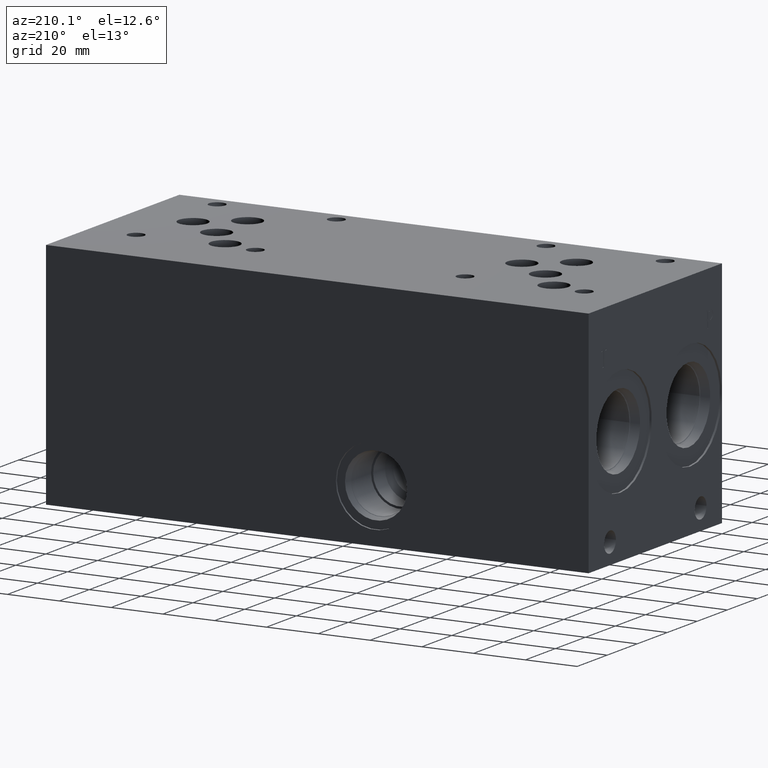
[diagram: clean part render]
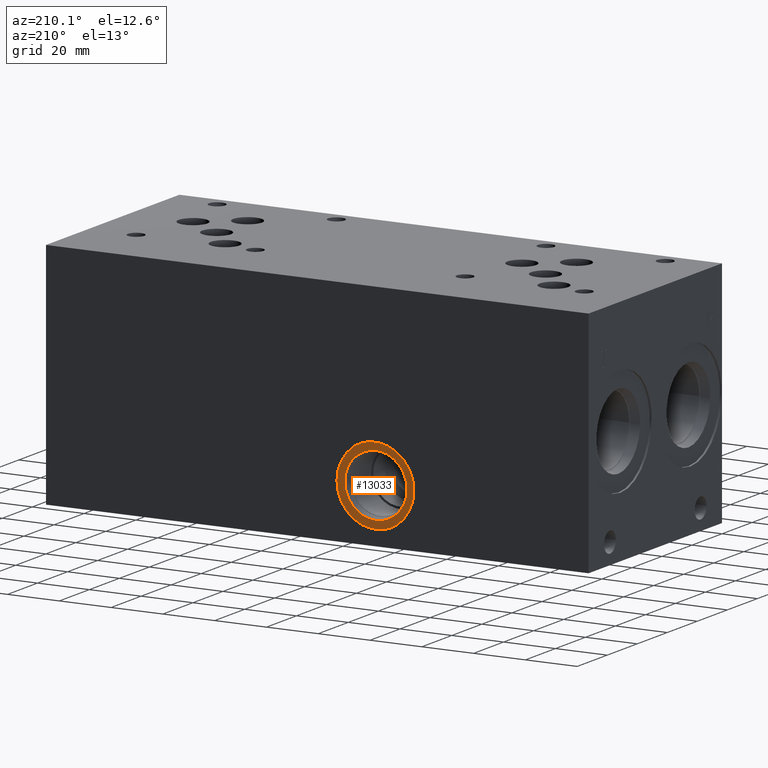
[diagram: same view with one face highlighted and labeled with its STEP entity id]
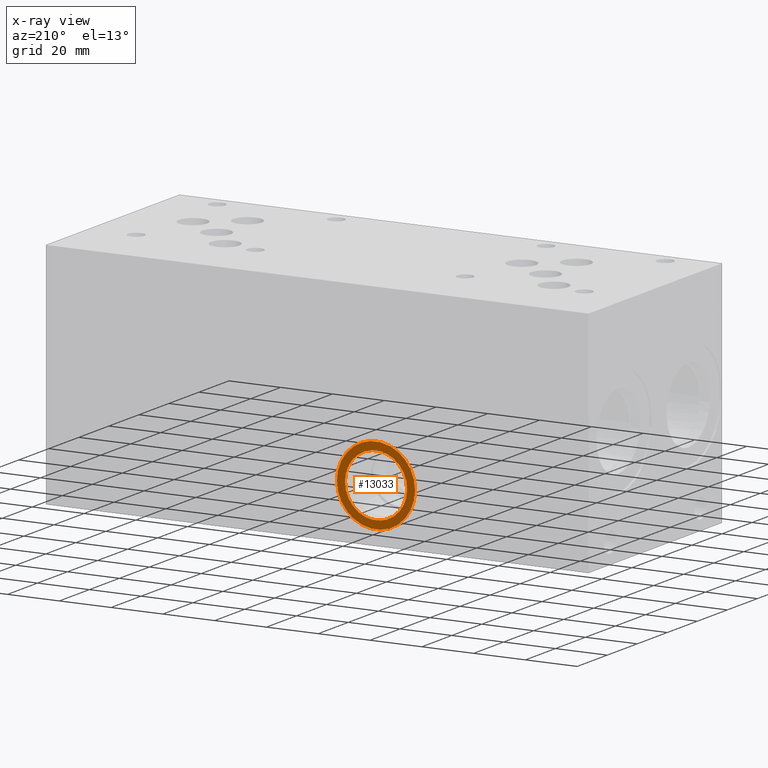
[diagram: x-ray of the same camera — body ghosted, the highlighted face saturated]
A machine part, auxiliary view. The second image highlights one B-rep face of the part: STEP entity #13033.
The next image is the same camera in x-ray: the body ghosted, the highlighted face saturated — about 0% of this face is hidden behind the body in this view.
In plain terms, the highlighted planar face has unit normal (0, -1, 0).
Its self-contained STEP definition (entity closure, byte-faithful):
#186=CIRCLE('',#13582,15.08);
#187=CIRCLE('',#13583,15.08);
#188=CIRCLE('',#13585,12.);
#189=CIRCLE('',#13586,12.);
#534=FACE_BOUND('',#2351,.T.);
#1609=FACE_OUTER_BOUND('',#2350,.T.);
#2350=EDGE_LOOP('',(#10765,#10766));
#2351=EDGE_LOOP('',(#10767,#10768));
#5860=VERTEX_POINT('',#21991);
#5861=VERTEX_POINT('',#21993);
#5862=VERTEX_POINT('',#21997);
#5863=VERTEX_POINT('',#21998);
#7580=EDGE_CURVE('',#5860,#5861,#186,.T.);
#7581=EDGE_CURVE('',#5861,#5860,#187,.T.);
#7582=EDGE_CURVE('',#5862,#5863,#188,.T.);
#7583=EDGE_CURVE('',#5863,#5862,#189,.T.);
#10765=ORIENTED_EDGE('',*,*,#7581,.F.);
#10766=ORIENTED_EDGE('',*,*,#7580,.F.);
#10767=ORIENTED_EDGE('',*,*,#7582,.T.);
#10768=ORIENTED_EDGE('',*,*,#7583,.T.);
#12009=PLANE('',#13584);
#13033=ADVANCED_FACE('',(#1609,#534),#12009,.F.);
#13582=AXIS2_PLACEMENT_3D('',#21994,#15785,#15786);
#13583=AXIS2_PLACEMENT_3D('',#21995,#15787,#15788);
#13584=AXIS2_PLACEMENT_3D('',#21996,#15789,#15790);
#13585=AXIS2_PLACEMENT_3D('',#21999,#15791,#15792);
#13586=AXIS2_PLACEMENT_3D('',#22000,#15793,#15794);
#15785=DIRECTION('center_axis',(0.,-1.,0.));
#15786=DIRECTION('ref_axis',(1.,0.,0.));
#15787=DIRECTION('center_axis',(0.,-1.,0.));
#15788=DIRECTION('ref_axis',(1.,0.,0.));
#15789=DIRECTION('center_axis',(0.,-1.,0.));
#15790=DIRECTION('ref_axis',(0.,0.,-1.));
#15791=DIRECTION('center_axis',(0.,-1.,0.));
#15792=DIRECTION('ref_axis',(1.,0.,0.));
#15793=DIRECTION('center_axis',(0.,-1.,0.));
#15794=DIRECTION('ref_axis',(1.,0.,0.));
#21991=CARTESIAN_POINT('',(67.47,88.11,20.6502));
#21993=CARTESIAN_POINT('',(97.63,88.11,20.6502));
#21994=CARTESIAN_POINT('Origin',(82.55,88.11,20.6502));
#21995=CARTESIAN_POINT('Origin',(82.55,88.11,20.6502));
#21996=CARTESIAN_POINT('Origin',(94.55,88.11,20.6502));
#21997=CARTESIAN_POINT('',(94.55,88.11,20.6502));
#21998=CARTESIAN_POINT('',(70.55,88.11,20.6502));
#21999=CARTESIAN_POINT('Origin',(82.55,88.11,20.6502));
#22000=CARTESIAN_POINT('Origin',(82.55,88.11,20.6502));